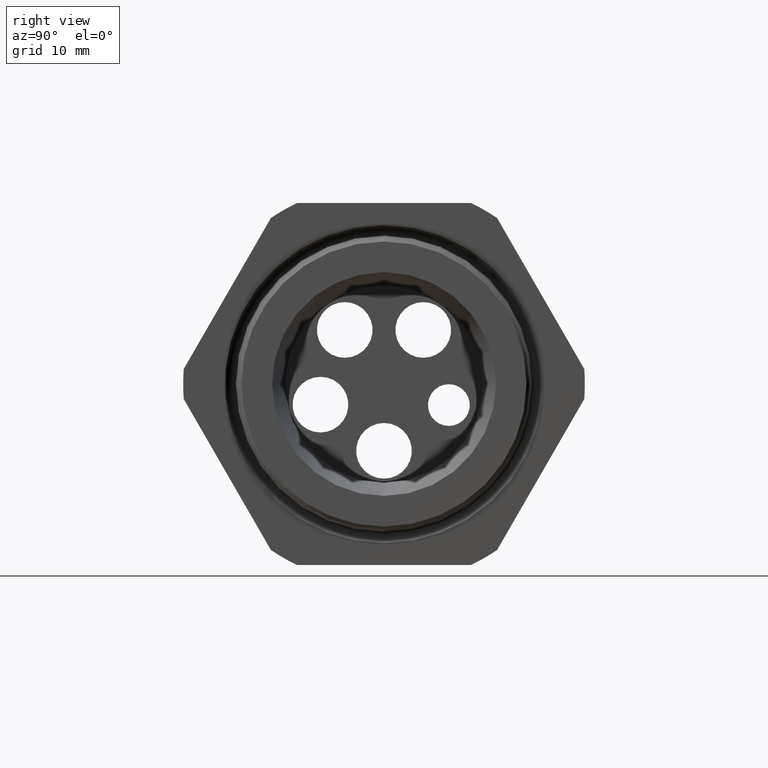
[diagram: clean part render]
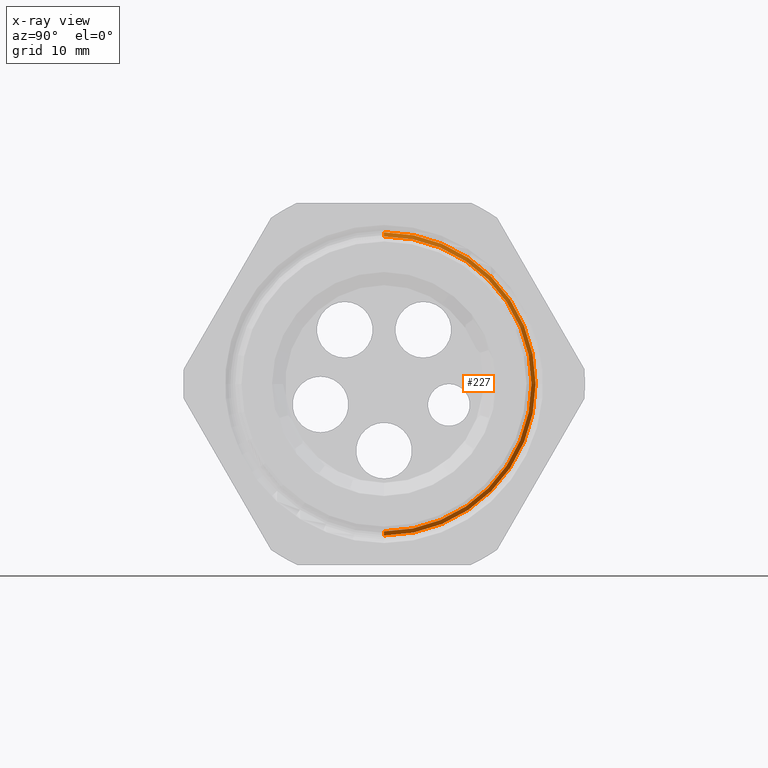
[diagram: x-ray — body ghosted, one internal face saturated and labeled with its STEP entity id]
A machine part, right view, then the same camera in x-ray: the body is ghosted and one INTERNAL B-rep face — a face not visible from any outside direction — is saturated and labeled: STEP entity #227.
In plain terms, the highlighted conical surface has half-angle 61.5 deg.
Its self-contained STEP definition (entity closure, byte-faithful):
#227 = ADVANCED_FACE ( 'NONE', ( #2634 ), #2632, .T. ) ;
#228 = EDGE_LOOP ( 'NONE', ( #229, #286, #289, #292 ) ) ;
#229 = ORIENTED_EDGE ( 'NONE', *, *, #232, .F. ) ;
#232 = EDGE_CURVE ( 'NONE', #233, #234, #2621, .T. ) ;
#233 = VERTEX_POINT ( 'NONE', #2617 ) ;
#234 = VERTEX_POINT ( 'NONE', #2616 ) ;
#286 = ORIENTED_EDGE ( 'NONE', *, *, #287, .T. ) ;
#287 = EDGE_CURVE ( 'NONE', #233, #288, #2705, .T. ) ;
#288 = VERTEX_POINT ( 'NONE', #2765 ) ;
#289 = ORIENTED_EDGE ( 'NONE', *, *, #290, .T. ) ;
#290 = EDGE_CURVE ( 'NONE', #288, #291, #2764, .T. ) ;
#291 = VERTEX_POINT ( 'NONE', #2759 ) ;
#292 = ORIENTED_EDGE ( 'NONE', *, *, #293, .F. ) ;
#293 = EDGE_CURVE ( 'NONE', #234, #291, #2758, .T. ) ;
#2616 = CARTESIAN_POINT ( 'NONE',  ( -0.6065405736958174900, 0.0000000000000000000, 0.5296307351718083600 ) ) ;
#2617 = CARTESIAN_POINT ( 'NONE',  ( -0.6065405736958174900, 6.578012292685949800E-017, -0.5296307351718083600 ) ) ;
#2618 = DIRECTION ( 'NONE',  ( 0.0000000000000000000, 0.0000000000000000000, -1.000000000000000000 ) ) ;
#2619 = DIRECTION ( 'NONE',  ( 1.000000000000000000, 0.0000000000000000000, 0.0000000000000000000 ) ) ;
#2620 = AXIS2_PLACEMENT_3D ( 'NONE', #2625, #2619, #2618 ) ;
#2621 = CIRCLE ( 'NONE', #2620, 0.5296307351718083600 ) ;
#2625 = CARTESIAN_POINT ( 'NONE',  ( -0.6065405736958174900, 0.0000000000000000000, 0.0000000000000000000 ) ) ;
#2628 = DIRECTION ( 'NONE',  ( 0.0000000000000000000, 0.0000000000000000000, 1.000000000000000000 ) ) ;
#2629 = DIRECTION ( 'NONE',  ( -1.000000000000000000, 0.0000000000000000000, 0.0000000000000000000 ) ) ;
#2630 = CARTESIAN_POINT ( 'NONE',  ( -0.6203149606299215300, 0.0000000000000000000, 0.0000000000000000000 ) ) ;
#2631 = AXIS2_PLACEMENT_3D ( 'NONE', #2630, #2629, #2628 ) ;
#2632 = CONICAL_SURFACE ( 'NONE', #2631, 0.5550000000000000500, 1.073377489976500500 ) ;
#2634 = FACE_OUTER_BOUND ( 'NONE', #228, .T. ) ;
#2702 = DIRECTION ( 'NONE',  ( -0.4771587602596191200, 1.076240564057387800E-016, -0.8788171126619595000 ) ) ;
#2703 = VECTOR ( 'NONE', #2702, 39.37007874015748100 ) ;
#2704 = CARTESIAN_POINT ( 'NONE',  ( -0.6203149606299215300, 6.796789735267811300E-017, -0.5550000000000000500 ) ) ;
#2705 = LINE ( 'NONE', #2704, #2703 ) ;
#2755 = DIRECTION ( 'NONE',  ( -0.4771587602596191200, 0.0000000000000000000, 0.8788171126619595000 ) ) ;
#2756 = VECTOR ( 'NONE', #2755, 39.37007874015748100 ) ;
#2757 = CARTESIAN_POINT ( 'NONE',  ( -0.6203149606299215300, 0.0000000000000000000, 0.5550000000000000500 ) ) ;
#2758 = LINE ( 'NONE', #2757, #2756 ) ;
#2759 = CARTESIAN_POINT ( 'NONE',  ( -0.6146900465598748000, 0.0000000000000000000, 0.5446401970293484100 ) ) ;
#2760 = DIRECTION ( 'NONE',  ( 0.0000000000000000000, 0.0000000000000000000, 1.000000000000000000 ) ) ;
#2761 = DIRECTION ( 'NONE',  ( 1.000000000000000000, 0.0000000000000000000, 0.0000000000000000000 ) ) ;
#2762 = CARTESIAN_POINT ( 'NONE',  ( -0.6146900465598748000, 0.0000000000000000000, 0.0000000000000000000 ) ) ;
#2763 = AXIS2_PLACEMENT_3D ( 'NONE', #2762, #2761, #2760 ) ;
#2764 = CIRCLE ( 'NONE', #2763, 0.5446401970293484100 ) ;
#2765 = CARTESIAN_POINT ( 'NONE',  ( -0.6146900465598748000, 6.671915467400999200E-017, -0.5446401970293484100 ) ) ;